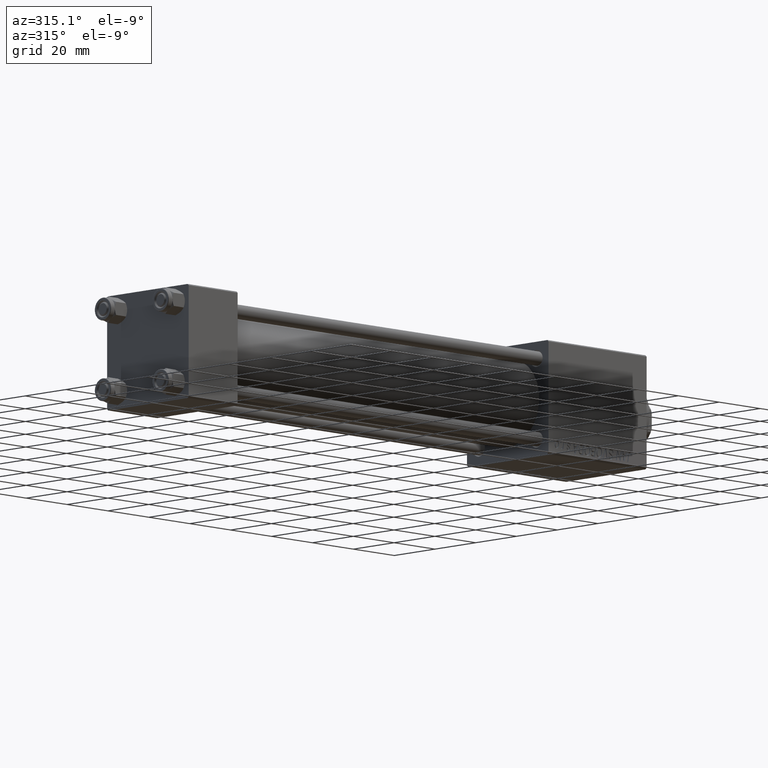
[diagram: clean part render]
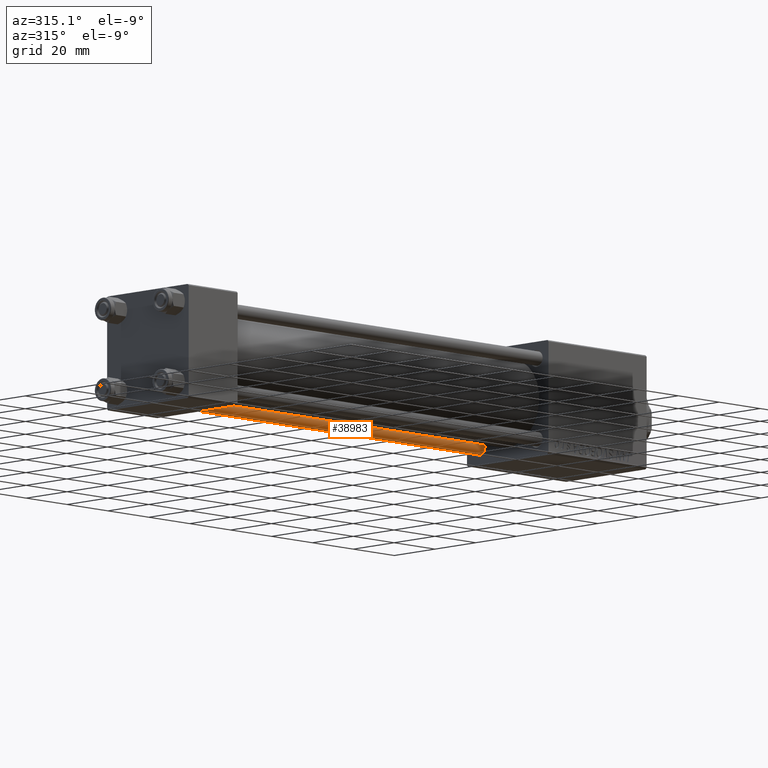
[diagram: same view with one face highlighted and labeled with its STEP entity id]
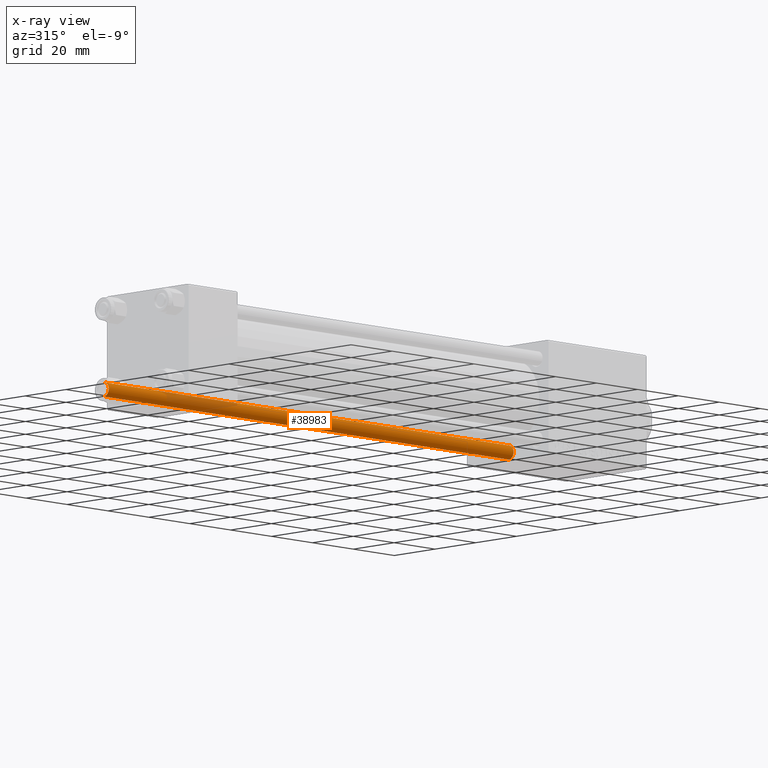
[diagram: x-ray of the same camera — body ghosted, the highlighted face saturated]
A machine part, auxiliary view. The second image highlights one B-rep face of the part: STEP entity #38983.
The next image is the same camera in x-ray: the body ghosted, the highlighted face saturated — about 10% of this face is hidden behind the body in this view.
In plain terms, the highlighted cylindrical surface (edge-blend (fillet) strip) has radius 2.5 mm, axis along (1, -0, 0).
Its self-contained STEP definition (entity closure, byte-faithful):
#69 = DIRECTION ( 'NONE',  ( -0.000000000000000000, -0.000000000000000000, -1.000000000000000000 ) ) ;
#1280 = ORIENTED_EDGE ( 'NONE', *, *, #42677, .F. ) ;
#2917 = LINE ( 'NONE', #14858, #28982 ) ;
#3929 = DIRECTION ( 'NONE',  ( 1.000000000000000000, 0.000000000000000000, 0.000000000000000000 ) ) ;
#4058 = AXIS2_PLACEMENT_3D ( 'NONE', #13968, #5838, #6593 ) ;
#5838 = DIRECTION ( 'NONE',  ( 0.000000000000000000, 0.000000000000000000, -1.000000000000000000 ) ) ;
#6593 = DIRECTION ( 'NONE',  ( 1.000000000000000000, 0.000000000000000000, 0.000000000000000000 ) ) ;
#8882 = VERTEX_POINT ( 'NONE', #38045 ) ;
#9136 = ORIENTED_EDGE ( 'NONE', *, *, #47743, .T. ) ;
#10775 = ORIENTED_EDGE ( 'NONE', *, *, #36088, .T. ) ;
#11008 = FACE_OUTER_BOUND ( 'NONE', #19897, .T. ) ;
#11288 = CARTESIAN_POINT ( 'NONE',  ( -2.500000000000000000, 0.000000000000000000, 0.5000000000000004441 ) ) ;
#11291 = DIRECTION ( 'NONE',  ( -0.000000000000000000, -0.000000000000000000, -1.000000000000000000 ) ) ;
#11557 = CARTESIAN_POINT ( 'NONE',  ( 0.000000000000000000, 0.000000000000000000, 0.5000000000000004441 ) ) ;
#13217 = AXIS2_PLACEMENT_3D ( 'NONE', #15072, #69, #15571 ) ;
#13968 = CARTESIAN_POINT ( 'NONE',  ( 0.000000000000000000, 0.000000000000000000, 198.5000000000000284 ) ) ;
#14858 = CARTESIAN_POINT ( 'NONE',  ( -2.500000000000000000, 0.000000000000000000, 199.0000000000000000 ) ) ;
#15072 = CARTESIAN_POINT ( 'NONE',  ( 0.000000000000000000, 0.000000000000000000, 199.0000000000000000 ) ) ;
#15571 = DIRECTION ( 'NONE',  ( -1.000000000000000000, 0.000000000000000000, 0.000000000000000000 ) ) ;
#15749 = VERTEX_POINT ( 'NONE', #11288 ) ;
#17576 = VERTEX_POINT ( 'NONE', #19761 ) ;
#19761 = CARTESIAN_POINT ( 'NONE',  ( 2.500000000000000000, 3.061616997868383141E-16, 0.5000000000000004441 ) ) ;
#19897 = EDGE_LOOP ( 'NONE', ( #1280, #26069, #9136, #10775 ) ) ;
#20012 = VERTEX_POINT ( 'NONE', #30418 ) ;
#22248 = LINE ( 'NONE', #26045, #43334 ) ;
#25540 = DIRECTION ( 'NONE',  ( -0.000000000000000000, -0.000000000000000000, -1.000000000000000000 ) ) ;
#26045 = CARTESIAN_POINT ( 'NONE',  ( 2.500000000000000000, 3.061616997868383141E-16, 199.0000000000000000 ) ) ;
#26069 = ORIENTED_EDGE ( 'NONE', *, *, #28478, .T. ) ;
#28478 = EDGE_CURVE ( 'NONE', #8882, #20012, #46269, .T. ) ;
#28982 = VECTOR ( 'NONE', #25540, 1000.000000000000000 ) ;
#30371 = DIRECTION ( 'NONE',  ( -0.000000000000000000, -0.000000000000000000, 1.000000000000000000 ) ) ;
#30418 = CARTESIAN_POINT ( 'NONE',  ( -2.500000000000000000, 0.000000000000000000, 198.5000000000000284 ) ) ;
#33378 = AXIS2_PLACEMENT_3D ( 'NONE', #11557, #30371, #3929 ) ;
#36088 = EDGE_CURVE ( 'NONE', #15749, #17576, #43113, .T. ) ;
#38045 = CARTESIAN_POINT ( 'NONE',  ( 2.500000000000000000, 3.061616997868383141E-16, 198.5000000000000284 ) ) ;
#38178 = CYLINDRICAL_SURFACE ( 'NONE', #13217, 2.500000000000000000 ) ;
#38983 = ADVANCED_FACE ( 'NONE', ( #11008 ), #38178, .T. ) ;
#42677 = EDGE_CURVE ( 'NONE', #8882, #17576, #22248, .T. ) ;
#43113 = CIRCLE ( 'NONE', #33378, 2.500000000000000000 ) ;
#43334 = VECTOR ( 'NONE', #11291, 1000.000000000000000 ) ;
#46269 = CIRCLE ( 'NONE', #4058, 2.500000000000000000 ) ;
#47743 = EDGE_CURVE ( 'NONE', #20012, #15749, #2917, .T. ) ;